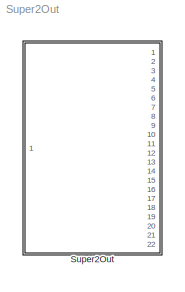
MODEL Super2Out
KIND model
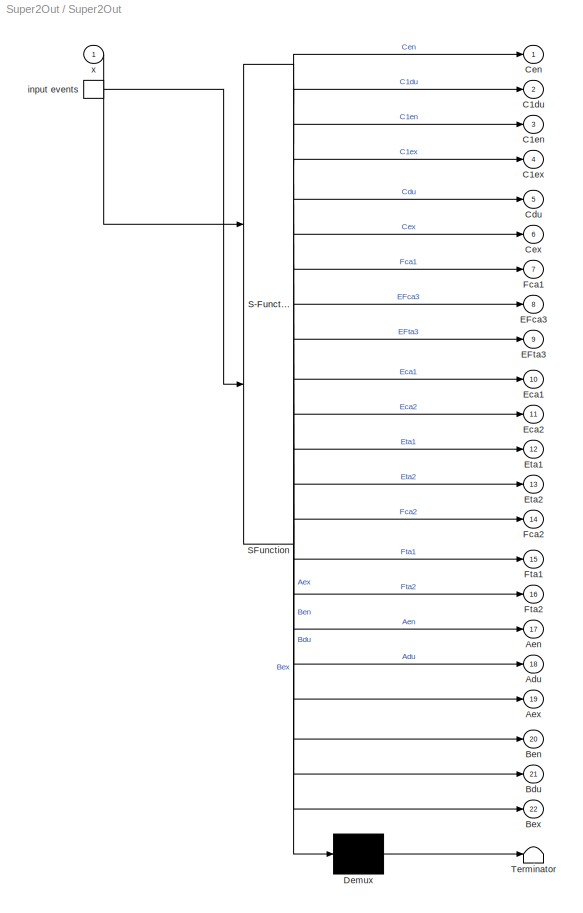
BLOCK [SubSystem] Super2Out
  MaskDescription = Stateflow diagram
  MaskDisplay = plot(sf('Private','sfblk','xIcon'),sf('Private','sfblk','yIcon'));text(0.5,0,sf('Private', 'sfblk', 'tIcon'),'HorizontalAl','Center','VerticalAl','Bottom');
  MaskIconFrame = off
  MaskIconOpaque = off
  MaskIconRotate = none
  MaskIconUnits = autoscale
  MaskSelfModifiable = on
  MaskType = Stateflow
  MinAlgLoopOccurrences = off
  Ports = [1, 22, 0, 1]
  RTWSystemCode = Auto
  TreatAsAtomicUnit = off
BLOCK [Demux] Super2Out/ Demux 
  Outputs = 1
  Ports = [1, 1]
BLOCK [S-Function] Super2Out/ SFunction 
  FunctionName = sf_sfun
  PortCounts = [2 23]
  Ports = [2, 23]
  Tag = Stateflow S-Function Super2Out 1
BLOCK [Terminator] Super2Out/ Terminator 
BLOCK [TriggerPort] Super2Out/ input events 
  Ports = [0, 1]
  ShowOutputPort = on
  TriggerType = either
BLOCK [Outport] Super2Out/Adu
  BusOutputAsStruct = off
  IconDisplay = Port number
  Port = 18
BLOCK [Outport] Super2Out/Aen
  BusOutputAsStruct = off
  IconDisplay = Port number
  Port = 17
BLOCK [Outport] Super2Out/Aex
  BusOutputAsStruct = off
  IconDisplay = Port number
  Port = 19
BLOCK [Outport] Super2Out/Bdu
  BusOutputAsStruct = off
  IconDisplay = Port number
  Port = 21
BLOCK [Outport] Super2Out/Ben
  BusOutputAsStruct = off
  IconDisplay = Port number
  Port = 20
BLOCK [Outport] Super2Out/Bex
  BusOutputAsStruct = off
  IconDisplay = Port number
  Port = 22
BLOCK [Outport] Super2Out/C1du
  BusOutputAsStruct = off
  IconDisplay = Port number
  Port = 2
BLOCK [Outport] Super2Out/C1en
  BusOutputAsStruct = off
  IconDisplay = Port number
  Port = 3
BLOCK [Outport] Super2Out/C1ex
  BusOutputAsStruct = off
  IconDisplay = Port number
  Port = 4
BLOCK [Outport] Super2Out/Cdu
  BusOutputAsStruct = off
  IconDisplay = Port number
  Port = 5
BLOCK [Outport] Super2Out/Cen
  BusOutputAsStruct = off
  IconDisplay = Port number
BLOCK [Outport] Super2Out/Cex
  BusOutputAsStruct = off
  IconDisplay = Port number
  Port = 6
BLOCK [Outport] Super2Out/EFca3
  BusOutputAsStruct = off
  IconDisplay = Port number
  Port = 8
BLOCK [Outport] Super2Out/EFta3
  BusOutputAsStruct = off
  IconDisplay = Port number
  Port = 9
BLOCK [Outport] Super2Out/Eca1
  BusOutputAsStruct = off
  IconDisplay = Port number
  Port = 10
BLOCK [Outport] Super2Out/Eca2
  BusOutputAsStruct = off
  IconDisplay = Port number
  Port = 11
BLOCK [Outport] Super2Out/Eta1
  BusOutputAsStruct = off
  IconDisplay = Port number
  Port = 12
BLOCK [Outport] Super2Out/Eta2
  BusOutputAsStruct = off
  IconDisplay = Port number
  Port = 13
BLOCK [Outport] Super2Out/Fca1
  BusOutputAsStruct = off
  IconDisplay = Port number
  Port = 7
BLOCK [Outport] Super2Out/Fca2
  BusOutputAsStruct = off
  IconDisplay = Port number
  Port = 14
BLOCK [Outport] Super2Out/Fta1
  BusOutputAsStruct = off
  IconDisplay = Port number
  Port = 15
BLOCK [Outport] Super2Out/Fta2
  BusOutputAsStruct = off
  IconDisplay = Port number
  Port = 16
BLOCK [Inport] Super2Out/x
  IconDisplay = Port number
  LatchInput = off
  Port = 1
LINE Super2Out/ Demux :1 -> Super2Out/ Terminator :1
LINE Super2Out/ SFunction :1 -> Super2Out/ Demux :1
LINE Super2Out/ SFunction :10 -> Super2Out/EFta3:1
LINE Super2Out/ SFunction :11 -> Super2Out/Eca1:1
LINE Super2Out/ SFunction :12 -> Super2Out/Eca2:1
LINE Super2Out/ SFunction :13 -> Super2Out/Eta1:1
LINE Super2Out/ SFunction :14 -> Super2Out/Eta2:1
LINE Super2Out/ SFunction :15 -> Super2Out/Fca2:1
LINE Super2Out/ SFunction :16 -> Super2Out/Fta1:1
LINE Super2Out/ SFunction :17 -> Super2Out/Fta2:1
LINE Super2Out/ SFunction :18 -> Super2Out/Aen:1
LINE Super2Out/ SFunction :19 -> Super2Out/Adu:1
LINE Super2Out/ SFunction :2 -> Super2Out/Cen:1
LINE Super2Out/ SFunction :20 -> Super2Out/Aex:1
LINE Super2Out/ SFunction :21 -> Super2Out/Ben:1
LINE Super2Out/ SFunction :22 -> Super2Out/Bdu:1
LINE Super2Out/ SFunction :23 -> Super2Out/Bex:1
LINE Super2Out/ SFunction :3 -> Super2Out/C1du:1
LINE Super2Out/ SFunction :4 -> Super2Out/C1en:1
LINE Super2Out/ SFunction :5 -> Super2Out/C1ex:1
LINE Super2Out/ SFunction :6 -> Super2Out/Cdu:1
LINE Super2Out/ SFunction :7 -> Super2Out/Cex:1
LINE Super2Out/ SFunction :8 -> Super2Out/Fca1:1
LINE Super2Out/ SFunction :9 -> Super2Out/EFca3:1
LINE Super2Out/ input events :1 -> Super2Out/ SFunction :2
LINE Super2Out/x:1 -> Super2Out/ SFunction :1
CHART Super2Out states=4 transitions=7
  STATE_LABEL 'A/\\nen: Aen++;\\ndu: Adu++;\\nex: Aex++;'
  STATE_LABEL 'B/\\nen: Ben++;\\ndu: Bdu++;\\nex: Bex++;'
  STATE_LABEL 'C1/\\nen: C1en++;\\ndu: C1du++;\\nex: C1ex++;'
  STATE_LABEL 'C/\\nen: Cen++;\\ndu: Cdu++;\\nex: Cex++;'
